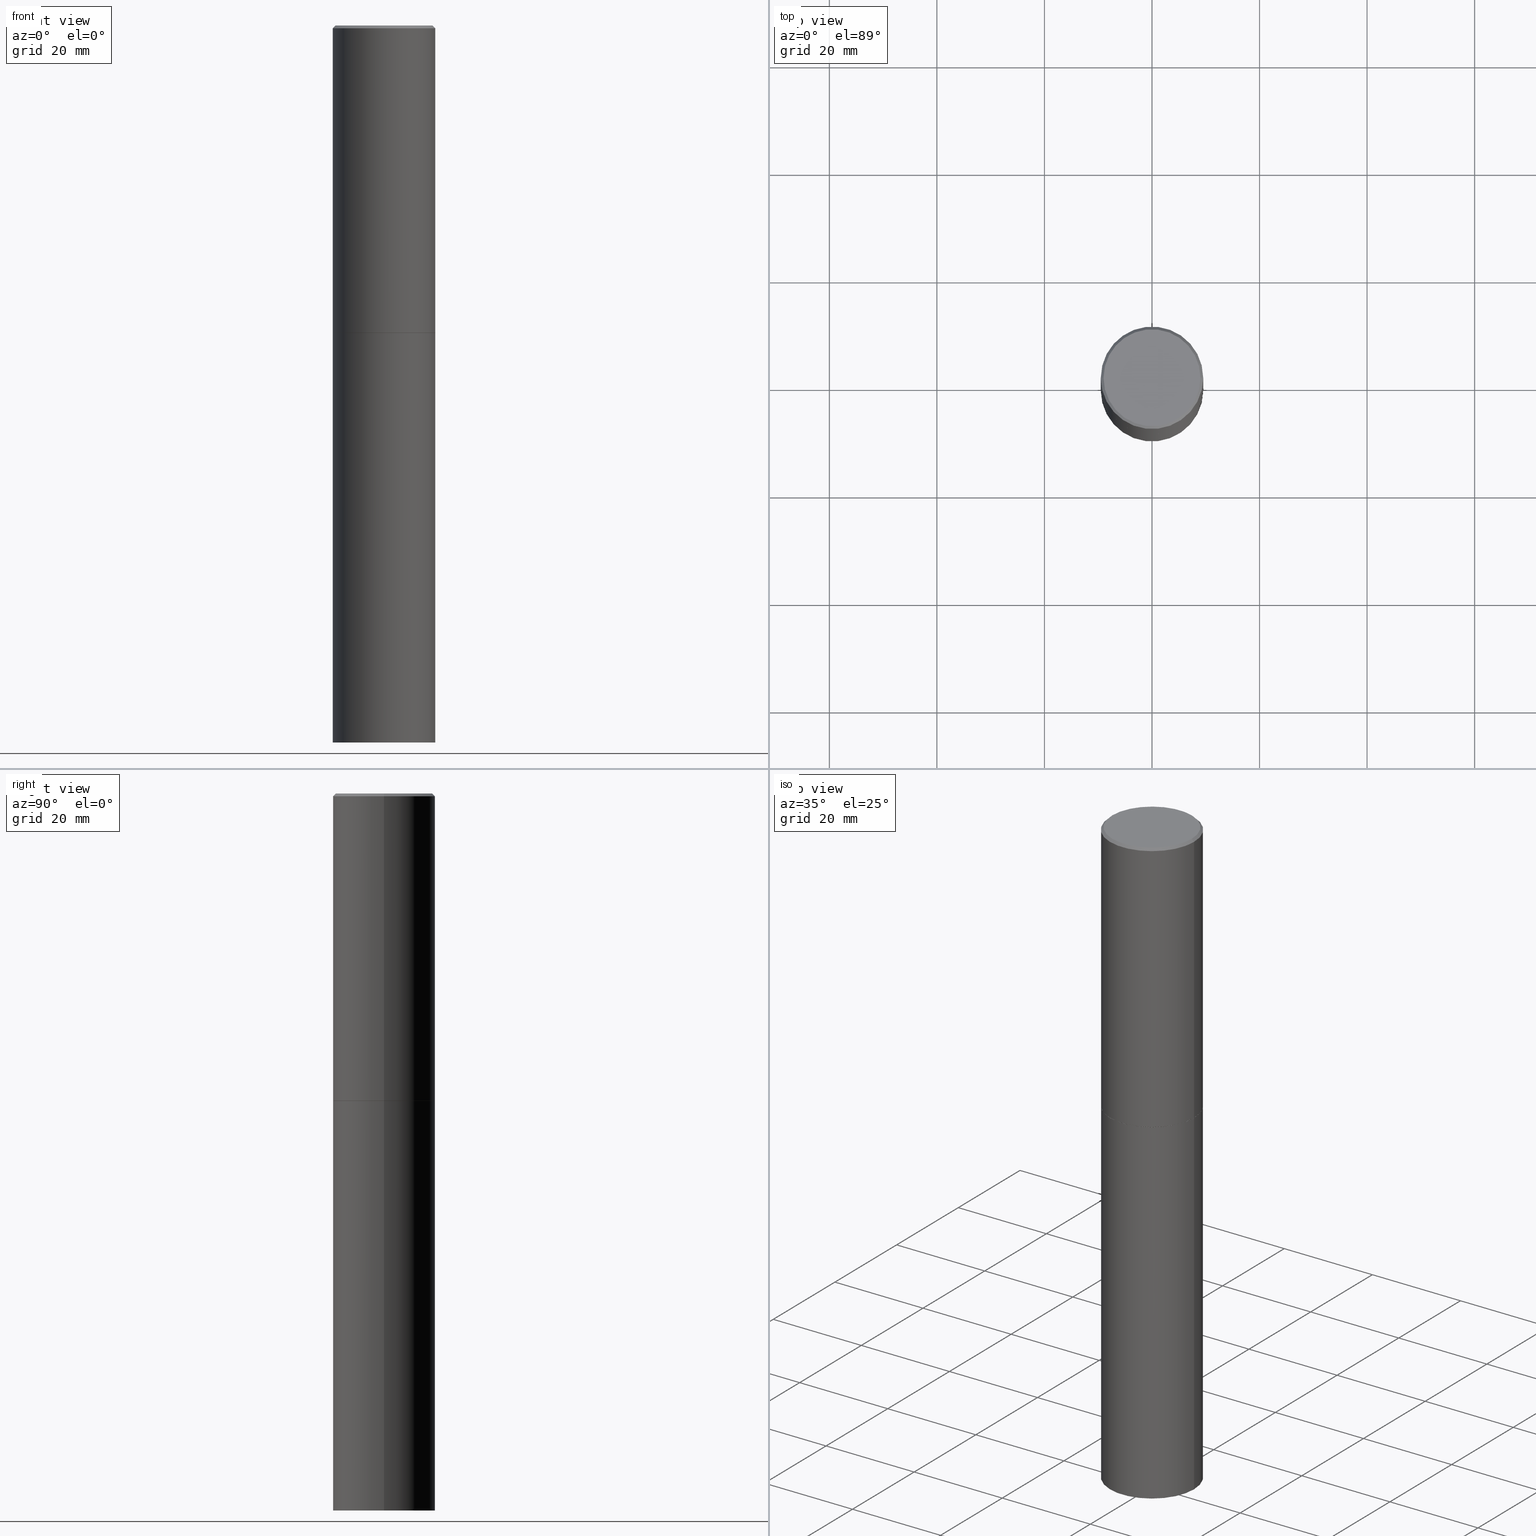
[diagram: canonical four-view strip — front | top / right | iso, engineering-drawing reading convention]
A machine part, canonical four-view strip (front | top / right | iso — engineering-drawing reading convention). The complete STEP part file that produces these views, byte-faithful:
ISO-10303-21;
HEADER;
FILE_DESCRIPTION (( 'STEP AP203' ),
    '1' );
FILE_NAME ('77276.STEP',
    '2024-02-29T17:53:42',
    ( '' ),
    ( '' ),
    'SwSTEP 2.0',
    'SolidWorks 2023',
    '' );
FILE_SCHEMA (( 'CONFIG_CONTROL_DESIGN' ));
ENDSEC;

DATA;
#1 = APPROVAL ( #339, 'UNSPECIFIED' ) ;
#2 = PERSON_AND_ORGANIZATION ( #355, #278 ) ;
#3 = APPROVAL_DATE_TIME ( #327, #21 ) ;
#4 =( GEOMETRIC_REPRESENTATION_CONTEXT ( 3 ) GLOBAL_UNCERTAINTY_ASSIGNED_CONTEXT ( ( #321 ) ) GLOBAL_UNIT_ASSIGNED_CONTEXT ( ( #110, #63, #108 ) ) REPRESENTATION_CONTEXT ( 'NONE', 'WORKASPACE' ) );
#5 = DIRECTION ( 'NONE',  ( -1.000000000000000000, 6.982962677686265922E-15, -4.876176775795935793E-29 ) ) ;
#6 = DIRECTION ( 'NONE',  ( -2.445468806185136877E-29, 3.491481338843145188E-15, 1.000000000000000000 ) ) ;
#7 = APPROVAL_ROLE ( '' ) ;
#8 = CARTESIAN_POINT ( 'NONE',  ( 0.3749999999999998335, -2.642516375941186451E-15, -0.02000000000000008021 ) ) ;
#9 = AXIS2_PLACEMENT_3D ( 'NONE', #94, #226, #62 ) ;
#10 = DIRECTION ( 'NONE',  ( -2.445468806185136597E-29, 3.491481338843145583E-15, 1.000000000000000000 ) ) ;
#11 = ADVANCED_FACE ( 'NONE', ( #243 ), #359, .F. ) ;
#12 = DIRECTION ( 'NONE',  ( -0.7071067811865474617, 7.493145998870352582E-15, 0.7071067811865474617 ) ) ;
#13 = VERTEX_POINT ( 'NONE', #192 ) ;
#14 = CARTESIAN_POINT ( 'NONE',  ( 5.499859345110371740E-29, -7.852341531058233864E-15, -2.249000000000000110 ) ) ;
#15 = ORIENTED_EDGE ( 'NONE', *, *, #183, .T. ) ;
#16 = AXIS2_PLACEMENT_3D ( 'NONE', #240, #211, #20 ) ;
#17 = EDGE_CURVE ( 'NONE', #29, #13, #43, .T. ) ;
#18 = CARTESIAN_POINT ( 'NONE',  ( 4.890937612370293302E-31, -6.982962677686318726E-17, -0.02000000000000008021 ) ) ;
#19 = ORIENTED_EDGE ( 'NONE', *, *, #215, .T. ) ;
#20 = DIRECTION ( 'NONE',  ( 1.000000000000000000, -6.982962677686266711E-15, 4.876231632511990425E-29 ) ) ;
#21 = APPROVAL ( #144, 'UNSPECIFIED' ) ;
#22 = EDGE_LOOP ( 'NONE', ( #298, #241, #19, #271 ) ) ;
#23 = CARTESIAN_POINT ( 'NONE',  ( 2.478951750578623420E-15, 0.3549999999999998157, -1.237341619044265835E-15 ) ) ;
#24 = EDGE_CURVE ( 'NONE', #109, #13, #250, .T. ) ;
#25 = ORIENTED_EDGE ( 'NONE', *, *, #252, .F. ) ;
#26 = DIRECTION ( 'NONE',  ( 1.000000000000000000, 0.000000000000000000, 0.000000000000000000 ) ) ;
#27 = AXIS2_PLACEMENT_3D ( 'NONE', #301, #316, #72 ) ;
#28 = AXIS2_PLACEMENT_3D ( 'NONE', #282, #53, #26 ) ;
#29 = VERTEX_POINT ( 'NONE', #169 ) ;
#30 = EDGE_CURVE ( 'NONE', #155, #107, #341, .T. ) ;
#31 = AXIS2_PLACEMENT_3D ( 'NONE', #356, #41, #291 ) ;
#32 = AXIS2_PLACEMENT_3D ( 'NONE', #122, #93, #229 ) ;
#33 = PERSON_AND_ORGANIZATION ( #355, #278 ) ;
#34 = DIRECTION ( 'NONE',  ( 1.000000000000000000, -6.982962677686264344E-15, 0.000000000000000000 ) ) ;
#35 = EDGE_CURVE ( 'NONE', #86, #264, #214, .T. ) ;
#36 = FACE_OUTER_BOUND ( 'NONE', #135, .T. ) ;
#37 = CARTESIAN_POINT ( 'NONE',  ( 5.499859345110371740E-29, -7.852341531058233864E-15, -2.249000000000000110 ) ) ;
#38 = SHAPE_DEFINITION_REPRESENTATION ( #140, #102 ) ;
#39 = CARTESIAN_POINT ( 'NONE',  ( 5.502304813916557343E-29, -7.855833012397078448E-15, -2.250000000000000000 ) ) ;
#40 = AXIS2_PLACEMENT_3D ( 'NONE', #152, #179, #104 ) ;
#41 = DIRECTION ( 'NONE',  ( 2.445468806185136597E-29, -3.491481338843145583E-15, -1.000000000000000000 ) ) ;
#42 = APPROVAL ( #54, 'UNSPECIFIED' ) ;
#43 = LINE ( 'NONE', #153, #158 ) ;
#44 = LINE ( 'NONE', #203, #196 ) ;
#45 = ORIENTED_EDGE ( 'NONE', *, *, #294, .F. ) ;
#46 = EDGE_CURVE ( 'NONE', #107, #155, #186, .T. ) ;
#47 = DIRECTION ( 'NONE',  ( -2.445468806185136597E-29, 3.491481338843145583E-15, 1.000000000000000000 ) ) ;
#48 = ORIENTED_EDGE ( 'NONE', *, *, #234, .T. ) ;
#49 = VECTOR ( 'NONE', #311, 39.37007874015748854 ) ;
#50 = FACE_OUTER_BOUND ( 'NONE', #319, .T. ) ;
#51 = DIRECTION ( 'NONE',  ( 1.000000000000000000, -6.982962677686265922E-15, 0.000000000000000000 ) ) ;
#52 = EDGE_LOOP ( 'NONE', ( #251, #79 ) ) ;
#53 = DIRECTION ( 'NONE',  ( 0.000000000000000000, 0.000000000000000000, 1.000000000000000000 ) ) ;
#54 = APPROVAL_STATUS ( 'not_yet_approved' ) ;
#55 = VECTOR ( 'NONE', #6, 39.37007874015748143 ) ;
#56 = SECURITY_CLASSIFICATION_LEVEL ( 'unclassified' ) ;
#57 = ADVANCED_FACE ( 'NONE', ( #36 ), #149, .T. ) ;
#58 = AXIS2_PLACEMENT_3D ( 'NONE', #37, #150, #151 ) ;
#59 = DIRECTION ( 'NONE',  ( 1.000000000000000000, -6.982962677686268288E-15, 0.000000000000000000 ) ) ;
#60 = ADVANCED_FACE ( 'NONE', ( #145 ), #261, .T. ) ;
#61 = PERSON_AND_ORGANIZATION ( #355, #278 ) ;
#62 = DIRECTION ( 'NONE',  ( 1.000000000000000000, -6.982962677686268288E-15, 0.000000000000000000 ) ) ;
#63 =( NAMED_UNIT ( * ) PLANE_ANGLE_UNIT ( ) SI_UNIT ( $, .RADIAN. ) );
#64 = AXIS2_PLACEMENT_3D ( 'NONE', #103, #129, #235 ) ;
#65 = LINE ( 'NONE', #174, #237 ) ;
#66 = CARTESIAN_POINT ( 'NONE',  ( 0.3739999999999999991, -1.046746105385174245E-14, -2.250000000000000000 ) ) ;
#67 = PRODUCT_DEFINITION ( 'UNKNOWN', '', #139, #222 ) ;
#68 = PLANE ( 'NONE',  #88 ) ;
#69 = LOCAL_TIME ( 12, 53, 42.00000000000000000, #168 ) ;
#70 = FACE_OUTER_BOUND ( 'NONE', #52, .T. ) ;
#71 = ORIENTED_EDGE ( 'NONE', *, *, #274, .F. ) ;
#72 = DIRECTION ( 'NONE',  ( 1.000000000000000000, -6.982962677686268288E-15, 0.000000000000000000 ) ) ;
#73 = ORIENTED_EDGE ( 'NONE', *, *, #294, .T. ) ;
#74 = DIRECTION ( 'NONE',  ( -2.445468806185136597E-29, 3.491481338843145583E-15, 1.000000000000000000 ) ) ;
#75 = VERTEX_POINT ( 'NONE', #117 ) ;
#76 = VECTOR ( 'NONE', #91, 39.37007874015748143 ) ;
#77 = FACE_OUTER_BOUND ( 'NONE', #266, .T. ) ;
#78 = LOCAL_TIME ( 12, 53, 42.00000000000000000, #216 ) ;
#79 = ORIENTED_EDGE ( 'NONE', *, *, #167, .T. ) ;
#80 = EDGE_CURVE ( 'NONE', #360, #303, #345, .T. ) ;
#81 =( LENGTH_UNIT ( ) NAMED_UNIT ( * ) SI_UNIT ( $, .METRE. ) );
#82 = DIRECTION ( 'NONE',  ( -1.000000000000000000, 6.982962677686265922E-15, -4.876176775795935793E-29 ) ) ;
#83 = CALENDAR_DATE ( 2024, 29, 2 ) ;
#84 = APPROVAL_DATE_TIME ( #195, #42 ) ;
#85 = AXIS2_PLACEMENT_3D ( 'NONE', #14, #184, #156 ) ;
#86 = VERTEX_POINT ( 'NONE', #336 ) ;
#87 = ADVANCED_FACE ( 'NONE', ( #121 ), #307, .T. ) ;
#88 = AXIS2_PLACEMENT_3D ( 'NONE', #132, #352, #253 ) ;
#89 = CALENDAR_DATE ( 2024, 29, 2 ) ;
#90 = CC_DESIGN_DATE_AND_TIME_ASSIGNMENT ( #334, #310, ( #143 ) ) ;
#91 = DIRECTION ( 'NONE',  ( -0.7071067811865459074, 2.468850131082239706E-15, -0.7071067811865492381 ) ) ;
#92 = CALENDAR_DATE ( 2024, 29, 2 ) ;
#93 = DIRECTION ( 'NONE',  ( -2.445468806185136597E-29, 3.491481338843145583E-15, 1.000000000000000000 ) ) ;
#94 = CARTESIAN_POINT ( 'NONE',  ( 5.502304813916557343E-29, -7.855833012397078448E-15, -2.250000000000000000 ) ) ;
#95 = AXIS2_PLACEMENT_3D ( 'NONE', #97, #280, #257 ) ;
#96 = EDGE_CURVE ( 'NONE', #264, #86, #256, .T. ) ;
#97 = CARTESIAN_POINT ( 'NONE',  ( 5.502304813916557343E-29, -7.855833012397078448E-15, -2.250000000000000000 ) ) ;
#98 = DIRECTION ( 'NONE',  ( 1.000000000000000000, -6.982962677686266711E-15, 4.876176775795935793E-29 ) ) ;
#99 = EDGE_CURVE ( 'NONE', #220, #360, #201, .T. ) ;
#100 = CARTESIAN_POINT ( 'NONE',  ( 0.3739999999999999991, -1.046746105385174245E-14, -2.250000000000000000 ) ) ;
#101 = AXIS2_PLACEMENT_3D ( 'NONE', #228, #10, #34 ) ;
#102 = ADVANCED_BREP_SHAPE_REPRESENTATION ( '77276', ( #119, #133, #28 ), #4 ) ;
#103 = CARTESIAN_POINT ( 'NONE',  ( 4.890937612370293302E-31, -6.982962677686318726E-17, -0.02000000000000008021 ) ) ;
#104 = DIRECTION ( 'NONE',  ( -1.000000000000000000, 6.982962677686265922E-15, 0.000000000000000000 ) ) ;
#105 = ORIENTED_EDGE ( 'NONE', *, *, #80, .T. ) ;
#106 = CYLINDRICAL_SURFACE ( 'NONE', #225, 0.3750000000000000555 ) ;
#107 = VERTEX_POINT ( 'NONE', #202 ) ;
#108 =( NAMED_UNIT ( * ) SI_UNIT ( $, .STERADIAN. ) SOLID_ANGLE_UNIT ( ) );
#109 = VERTEX_POINT ( 'NONE', #312 ) ;
#110 =( CONVERSION_BASED_UNIT ( 'INCH', #190 ) LENGTH_UNIT ( ) NAMED_UNIT ( #177 ) );
#111 = ORIENTED_EDGE ( 'NONE', *, *, #96, .T. ) ;
#112 = EDGE_CURVE ( 'NONE', #264, #155, #65, .T. ) ;
#113 = AXIS2_PLACEMENT_3D ( 'NONE', #217, #328, #82 ) ;
#114 = APPROVAL_PERSON_ORGANIZATION ( #61, #1, #7 ) ;
#115 = CC_DESIGN_PERSON_AND_ORGANIZATION_ASSIGNMENT ( #306, #255, ( #67 ) ) ;
#116 = COORDINATED_UNIVERSAL_TIME_OFFSET ( 5, 0, .BEHIND. ) ;
#117 = CARTESIAN_POINT ( 'NONE',  ( -0.3739999999999999991, -5.193104726306080569E-15, -2.250000000000000000 ) ) ;
#118 = AXIS2_PLACEMENT_3D ( 'NONE', #23, #265, #181 ) ;
#119 = MANIFOLD_SOLID_BREP ( 'Body-Move/Copy2[1]', #213 ) ;
#120 = DIRECTION ( 'NONE',  ( 1.000000000000000000, -6.982962677686261189E-15, 0.000000000000000000 ) ) ;
#121 = FACE_OUTER_BOUND ( 'NONE', #210, .T. ) ;
#122 = CARTESIAN_POINT ( 'NONE',  ( 0.000000000000000000, 0.000000000000000000, 0.000000000000000000 ) ) ;
#123 = EDGE_CURVE ( 'NONE', #360, #29, #147, .T. ) ;
#124 = VECTOR ( 'NONE', #288, 39.37007874015748143 ) ;
#125 = LOCAL_TIME ( 12, 53, 42.00000000000000000, #175 ) ;
#126 = CARTESIAN_POINT ( 'NONE',  ( -0.3750000000000000555, -1.042851976156142014E-14, -2.250000000000000000 ) ) ;
#127 = DIRECTION ( 'NONE',  ( -2.445468806185136597E-29, 3.491481338843145583E-15, 1.000000000000000000 ) ) ;
#128 = ORIENTED_EDGE ( 'NONE', *, *, #46, .F. ) ;
#129 = DIRECTION ( 'NONE',  ( -2.445468806185136597E-29, 3.491481338843145583E-15, 1.000000000000000000 ) ) ;
#130 = ORIENTED_EDGE ( 'NONE', *, *, #123, .T. ) ;
#131 = CLOSED_SHELL ( 'NONE', ( #87, #164, #231, #191, #338, #245, #354, #259 ) ) ;
#132 = CARTESIAN_POINT ( 'NONE',  ( 5.502304813916557343E-29, -7.855833012397078448E-15, -2.250000000000000000 ) ) ;
#133 = MANIFOLD_SOLID_BREP ( 'Body-Move/Copy2[2]', #131 ) ;
#134 = CARTESIAN_POINT ( 'NONE',  ( -0.3750000000000000555, -1.042851976156142014E-14, -5.250000000000000000 ) ) ;
#135 = EDGE_LOOP ( 'NONE', ( #236, #205, #128, #185 ) ) ;
#136 = LINE ( 'NONE', #209, #349 ) ;
#137 = EDGE_LOOP ( 'NONE', ( #138, #71, #212, #73 ) ) ;
#138 = ORIENTED_EDGE ( 'NONE', *, *, #141, .F. ) ;
#139 = PRODUCT_DEFINITION_FORMATION_WITH_SPECIFIED_SOURCE ( 'ANY', '', #302, .NOT_KNOWN. ) ;
#140 = PRODUCT_DEFINITION_SHAPE ( 'NONE', 'NONE',  #67 ) ;
#141 = EDGE_CURVE ( 'NONE', #180, #303, #258, .T. ) ;
#142 = PERSON_AND_ORGANIZATION ( #355, #278 ) ;
#143 = SECURITY_CLASSIFICATION ( '', '', #56 ) ;
#144 = APPROVAL_STATUS ( 'not_yet_approved' ) ;
#145 = FACE_OUTER_BOUND ( 'NONE', #348, .T. ) ;
#146 = APPLICATION_PROTOCOL_DEFINITION ( 'international standard', 'config_control_design', 1994, #292 ) ;
#147 = CIRCLE ( 'NONE', #58, 0.3750000000000001110 ) ;
#148 = COORDINATED_UNIVERSAL_TIME_OFFSET ( 5, 0, .BEHIND. ) ;
#149 = CYLINDRICAL_SURFACE ( 'NONE', #32, 0.3750000000000000555 ) ;
#150 = DIRECTION ( 'NONE',  ( -2.445468806185136597E-29, 3.491481338843145583E-15, 1.000000000000000000 ) ) ;
#151 = DIRECTION ( 'NONE',  ( 1.000000000000000000, -6.982962677686265922E-15, 0.000000000000000000 ) ) ;
#152 = CARTESIAN_POINT ( 'NONE',  ( 4.890937612370293302E-31, -6.982962677686318726E-17, -0.02000000000000008021 ) ) ;
#153 = CARTESIAN_POINT ( 'NONE',  ( -0.3749999999999999445, 2.664535259100375303E-15, -1.844600658845589318E-29 ) ) ;
#154 = FACE_OUTER_BOUND ( 'NONE', #326, .T. ) ;
#155 = VERTEX_POINT ( 'NONE', #126 ) ;
#156 = DIRECTION ( 'NONE',  ( 1.000000000000000000, -6.982962677686265922E-15, 0.000000000000000000 ) ) ;
#157 = ORIENTED_EDGE ( 'NONE', *, *, #286, .F. ) ;
#158 = VECTOR ( 'NONE', #277, 39.37007874015748143 ) ;
#159 = LOCAL_TIME ( 12, 53, 42.00000000000000000, #148 ) ;
#160 = EDGE_CURVE ( 'NONE', #220, #75, #260, .T. ) ;
#161 = CARTESIAN_POINT ( 'NONE',  ( 0.000000000000000000, 0.000000000000000000, 0.000000000000000000 ) ) ;
#162 = DIRECTION ( 'NONE',  ( -2.445468806185136877E-29, 3.491481338843145188E-15, 1.000000000000000000 ) ) ;
#163 = ORIENTED_EDGE ( 'NONE', *, *, #96, .F. ) ;
#164 = ADVANCED_FACE ( 'NONE', ( #176 ), #347, .T. ) ;
#165 = CIRCLE ( 'NONE', #16, 0.3549999999999998157 ) ;
#166 = CARTESIAN_POINT ( 'NONE',  ( 0.3750000000000001110, -1.047095253519058546E-14, -2.249000000000000110 ) ) ;
#167 = EDGE_CURVE ( 'NONE', #180, #109, #289, .T. ) ;
#168 = COORDINATED_UNIVERSAL_TIME_OFFSET ( 5, 0, .BEHIND. ) ;
#169 = CARTESIAN_POINT ( 'NONE',  ( -0.3750000000000001110, -1.296550319817170517E-15, -2.249000000000000110 ) ) ;
#170 = CC_DESIGN_PERSON_AND_ORGANIZATION_ASSIGNMENT ( #33, #200, ( #139 ) ) ;
#171 = DIRECTION ( 'NONE',  ( -2.445468806185136597E-29, 3.491481338843145583E-15, 1.000000000000000000 ) ) ;
#172 = CONICAL_SURFACE ( 'NONE', #27, 0.3739999999999999991, 0.7853981633974482790 ) ;
#173 = CC_DESIGN_APPROVAL ( #1, ( #143 ) ) ;
#174 = CARTESIAN_POINT ( 'NONE',  ( -0.3750000000000000555, 2.664535259100376091E-15, -1.844600658845589598E-29 ) ) ;
#175 = COORDINATED_UNIVERSAL_TIME_OFFSET ( 5, 0, .BEHIND. ) ;
#176 = FACE_OUTER_BOUND ( 'NONE', #353, .T. ) ;
#177 = DIMENSIONAL_EXPONENTS ( 1.000000000000000000, 0.000000000000000000, 0.000000000000000000, 0.000000000000000000, 0.000000000000000000, 0.000000000000000000, 0.000000000000000000 ) ;
#178 = AXIS2_PLACEMENT_3D ( 'NONE', #272, #127, #232 ) ;
#179 = DIRECTION ( 'NONE',  ( 2.445468806185136597E-29, -3.491481338843145583E-15, -1.000000000000000000 ) ) ;
#180 = VERTEX_POINT ( 'NONE', #318 ) ;
#181 = DIRECTION ( 'NONE',  ( -1.000000000000000000, 6.982962677686265922E-15, -4.876176775795935793E-29 ) ) ;
#182 = ORIENTED_EDGE ( 'NONE', *, *, #99, .F. ) ;
#183 = EDGE_CURVE ( 'NONE', #86, #107, #136, .T. ) ;
#184 = DIRECTION ( 'NONE',  ( -2.445468806185136597E-29, 3.491481338843145583E-15, 1.000000000000000000 ) ) ;
#185 = ORIENTED_EDGE ( 'NONE', *, *, #183, .F. ) ;
#186 = CIRCLE ( 'NONE', #101, 0.3750000000000000555 ) ;
#187 = CC_DESIGN_APPROVAL ( #21, ( #139 ) ) ;
#188 = CYLINDRICAL_SURFACE ( 'NONE', #262, 0.3749999999999999445 ) ;
#189 = ORIENTED_EDGE ( 'NONE', *, *, #46, .T. ) ;
#190 = LENGTH_MEASURE_WITH_UNIT ( LENGTH_MEASURE( 0.02539999999999999897 ), #81 );
#191 = ADVANCED_FACE ( 'NONE', ( #290 ), #230, .T. ) ;
#192 = CARTESIAN_POINT ( 'NONE',  ( -0.3749999999999998335, 2.548781377355485141E-15, -0.02000000000000008021 ) ) ;
#193 = CC_DESIGN_PERSON_AND_ORGANIZATION_ASSIGNMENT ( #2, #198, ( #143 ) ) ;
#194 = CIRCLE ( 'NONE', #85, 0.3750000000000001110 ) ;
#195 = DATE_AND_TIME ( #83, #159 ) ;
#196 = VECTOR ( 'NONE', #12, 39.37007874015748854 ) ;
#197 = CARTESIAN_POINT ( 'NONE',  ( 1.283871123247196713E-28, -1.833027702892651322E-14, -5.250000000000000000 ) ) ;
#198 = PERSON_AND_ORGANIZATION_ROLE ( 'classification_officer' ) ;
#199 = DIRECTION ( 'NONE',  ( -2.445468806185136597E-29, 3.491481338843145583E-15, 1.000000000000000000 ) ) ;
#200 = PERSON_AND_ORGANIZATION_ROLE ( 'creator' ) ;
#201 = LINE ( 'NONE', #66, #49 ) ;
#202 = CARTESIAN_POINT ( 'NONE',  ( 0.3750000000000000555, -1.047444401652942689E-14, -2.250000000000000000 ) ) ;
#203 = CARTESIAN_POINT ( 'NONE',  ( -0.3739999999999999991, -5.198403180654302971E-15, -2.250000000000000000 ) ) ;
#204 = DIRECTION ( 'NONE',  ( 1.000000000000000000, -6.982962677686266711E-15, 4.876231632511990425E-29 ) ) ;
#205 = ORIENTED_EDGE ( 'NONE', *, *, #112, .T. ) ;
#206 = AXIS2_PLACEMENT_3D ( 'NONE', #284, #199, #120 ) ;
#207 = LOCAL_TIME ( 12, 53, 42.00000000000000000, #116 ) ;
#208 = DIRECTION ( 'NONE',  ( 1.000000000000000000, -6.982962677686265922E-15, 4.876176775795935793E-29 ) ) ;
#209 = CARTESIAN_POINT ( 'NONE',  ( 0.3750000000000000555, -2.618611004132350016E-15, 1.828566290923476203E-29 ) ) ;
#210 = EDGE_LOOP ( 'NONE', ( #317, #48, #273, #182 ) ) ;
#211 = DIRECTION ( 'NONE',  ( -2.445468806185136597E-29, 3.491481338843145583E-15, 1.000000000000000000 ) ) ;
#212 = ORIENTED_EDGE ( 'NONE', *, *, #24, .T. ) ;
#213 = CLOSED_SHELL ( 'NONE', ( #57, #60, #11, #323 ) ) ;
#214 = CIRCLE ( 'NONE', #206, 0.3750000000000000555 ) ;
#215 = EDGE_CURVE ( 'NONE', #303, #13, #308, .T. ) ;
#216 = COORDINATED_UNIVERSAL_TIME_OFFSET ( 5, 0, .BEHIND. ) ;
#217 = CARTESIAN_POINT ( 'NONE',  ( 2.618611004132404842E-15, 0.3749999999999921729, -2.250000000000001332 ) ) ;
#218 = CC_DESIGN_DATE_AND_TIME_ASSIGNMENT ( #357, #279, ( #67 ) ) ;
#219 = PERSON_AND_ORGANIZATION ( #355, #278 ) ;
#220 = VERTEX_POINT ( 'NONE', #100 ) ;
#221 = AXIS2_PLACEMENT_3D ( 'NONE', #197, #171, #337 ) ;
#222 = DESIGN_CONTEXT ( 'detailed design', #344, 'design' ) ;
#223 = CALENDAR_DATE ( 2024, 29, 2 ) ;
#224 = CIRCLE ( 'NONE', #178, 0.3739999999999999991 ) ;
#225 = AXIS2_PLACEMENT_3D ( 'NONE', #242, #324, #208 ) ;
#226 = DIRECTION ( 'NONE',  ( -2.445468806185136597E-29, 3.491481338843145583E-15, 1.000000000000000000 ) ) ;
#227 = PRODUCT_RELATED_PRODUCT_CATEGORY ( 'detail', '', ( #302 ) ) ;
#228 = CARTESIAN_POINT ( 'NONE',  ( 5.502304813916557343E-29, -7.855833012397078448E-15, -2.250000000000000000 ) ) ;
#229 = DIRECTION ( 'NONE',  ( 1.000000000000000000, -6.982962677686265922E-15, 4.876176775795935793E-29 ) ) ;
#230 = CONICAL_SURFACE ( 'NONE', #31, 0.3749999999999998335, 0.7853981633974459475 ) ;
#231 = ADVANCED_FACE ( 'NONE', ( #320 ), #331, .T. ) ;
#232 = DIRECTION ( 'NONE',  ( 1.000000000000000000, -6.982962677686268288E-15, 0.000000000000000000 ) ) ;
#233 = ORIENTED_EDGE ( 'NONE', *, *, #30, .T. ) ;
#234 = EDGE_CURVE ( 'NONE', #75, #29, #44, .T. ) ;
#235 = DIRECTION ( 'NONE',  ( 1.000000000000000000, -6.982962677686265922E-15, 0.000000000000000000 ) ) ;
#236 = ORIENTED_EDGE ( 'NONE', *, *, #35, .T. ) ;
#237 = VECTOR ( 'NONE', #287, 39.37007874015748143 ) ;
#238 = DIRECTION ( 'NONE',  ( 1.000000000000000000, -6.982962677686266711E-15, 4.876176775795935793E-29 ) ) ;
#239 = ORIENTED_EDGE ( 'NONE', *, *, #112, .F. ) ;
#240 = CARTESIAN_POINT ( 'NONE',  ( -1.043851414335219820E-46, 1.490343170380447200E-32, 4.268512490100411279E-18 ) ) ;
#241 = ORIENTED_EDGE ( 'NONE', *, *, #141, .T. ) ;
#242 = CARTESIAN_POINT ( 'NONE',  ( 0.000000000000000000, 0.000000000000000000, 0.000000000000000000 ) ) ;
#243 = FACE_OUTER_BOUND ( 'NONE', #322, .T. ) ;
#244 = ORIENTED_EDGE ( 'NONE', *, *, #234, .F. ) ;
#245 = ADVANCED_FACE ( 'NONE', ( #154 ), #172, .T. ) ;
#246 = PERSON_AND_ORGANIZATION_ROLE ( 'design_owner' ) ;
#247 = ORIENTED_EDGE ( 'NONE', *, *, #35, .F. ) ;
#248 = PERSON_AND_ORGANIZATION ( #355, #278 ) ;
#249 = ORIENTED_EDGE ( 'NONE', *, *, #17, .T. ) ;
#250 = LINE ( 'NONE', #340, #76 ) ;
#251 = ORIENTED_EDGE ( 'NONE', *, *, #274, .T. ) ;
#252 = EDGE_CURVE ( 'NONE', #75, #220, #224, .T. ) ;
#253 = DIRECTION ( 'NONE',  ( 1.000000000000000000, -6.982962677686265922E-15, 4.876176775795935793E-29 ) ) ;
#254 = DIRECTION ( 'NONE',  ( 2.438088387897960049E-29, -3.491481338843145188E-15, -1.000000000000000000 ) ) ;
#255 = PERSON_AND_ORGANIZATION_ROLE ( 'creator' ) ;
#256 = CIRCLE ( 'NONE', #221, 0.3750000000000000555 ) ;
#257 = DIRECTION ( 'NONE',  ( 1.000000000000000000, -6.982962677686264344E-15, 0.000000000000000000 ) ) ;
#258 = LINE ( 'NONE', #8, #124 ) ;
#259 = ADVANCED_FACE ( 'NONE', ( #70 ), #297, .F. ) ;
#260 = CIRCLE ( 'NONE', #366, 0.3739999999999999991 ) ;
#261 = PLANE ( 'NONE',  #299 ) ;
#262 = AXIS2_PLACEMENT_3D ( 'NONE', #295, #47, #98 ) ;
#263 = DIRECTION ( 'NONE',  ( -2.445468806185136597E-29, 3.491481338843145583E-15, 1.000000000000000000 ) ) ;
#264 = VERTEX_POINT ( 'NONE', #134 ) ;
#265 = DIRECTION ( 'NONE',  ( 2.438088387897960049E-29, -3.491481338843145188E-15, -1.000000000000000000 ) ) ;
#266 = EDGE_LOOP ( 'NONE', ( #293, #362, #105, #45 ) ) ;
#267 = CARTESIAN_POINT ( 'NONE',  ( -1.043851414335219820E-46, 1.490343170380447200E-32, 4.268512490100411279E-18 ) ) ;
#268 = EDGE_LOOP ( 'NONE', ( #275, #25 ) ) ;
#269 = CC_DESIGN_APPROVAL ( #42, ( #67 ) ) ;
#270 = DIRECTION ( 'NONE',  ( -2.445468806185136597E-29, 3.491481338843145583E-15, 1.000000000000000000 ) ) ;
#271 = ORIENTED_EDGE ( 'NONE', *, *, #24, .F. ) ;
#272 = CARTESIAN_POINT ( 'NONE',  ( 5.502304813916557343E-29, -7.855833012397078448E-15, -2.250000000000000000 ) ) ;
#273 = ORIENTED_EDGE ( 'NONE', *, *, #123, .F. ) ;
#274 = EDGE_CURVE ( 'NONE', #109, #180, #165, .T. ) ;
#275 = ORIENTED_EDGE ( 'NONE', *, *, #160, .F. ) ;
#276 = AXIS2_PLACEMENT_3D ( 'NONE', #161, #74, #238 ) ;
#277 = DIRECTION ( 'NONE',  ( -2.445468806185136877E-29, 3.491481338843145188E-15, 1.000000000000000000 ) ) ;
#278 = ORGANIZATION ( 'UNSPECIFIED', 'UNSPECIFIED', '' ) ;
#279 = DATE_TIME_ROLE ( 'creation_date' ) ;
#280 = DIRECTION ( 'NONE',  ( -2.445468806185136597E-29, 3.491481338843145583E-15, 1.000000000000000000 ) ) ;
#281 = APPROVAL_ROLE ( '' ) ;
#282 = CARTESIAN_POINT ( 'NONE',  ( 0.000000000000000000, 0.000000000000000000, 0.000000000000000000 ) ) ;
#283 = CIRCLE ( 'NONE', #64, 0.3749999999999998335 ) ;
#284 = CARTESIAN_POINT ( 'NONE',  ( 1.283871123247196713E-28, -1.833027702892651322E-14, -5.250000000000000000 ) ) ;
#285 = CALENDAR_DATE ( 2024, 29, 2 ) ;
#286 = EDGE_CURVE ( 'NONE', #29, #360, #194, .T. ) ;
#287 = DIRECTION ( 'NONE',  ( -2.445468806185136877E-29, 3.491481338843145188E-15, 1.000000000000000000 ) ) ;
#288 = DIRECTION ( 'NONE',  ( 0.7071067811865459074, -7.319954787623251312E-15, -0.7071067811865492381 ) ) ;
#289 = CIRCLE ( 'NONE', #325, 0.3549999999999998157 ) ;
#290 = FACE_OUTER_BOUND ( 'NONE', #137, .T. ) ;
#291 = DIRECTION ( 'NONE',  ( -1.000000000000000000, 6.982962677686265922E-15, 0.000000000000000000 ) ) ;
#292 = APPLICATION_CONTEXT ( 'configuration controlled 3d designs of mechanical parts and assemblies' ) ;
#293 = ORIENTED_EDGE ( 'NONE', *, *, #17, .F. ) ;
#294 = EDGE_CURVE ( 'NONE', #13, #303, #283, .T. ) ;
#295 = CARTESIAN_POINT ( 'NONE',  ( 0.000000000000000000, 0.000000000000000000, 0.000000000000000000 ) ) ;
#296 = ORIENTED_EDGE ( 'NONE', *, *, #99, .T. ) ;
#297 = PLANE ( 'NONE',  #118 ) ;
#298 = ORIENTED_EDGE ( 'NONE', *, *, #167, .F. ) ;
#299 = AXIS2_PLACEMENT_3D ( 'NONE', #314, #254, #5 ) ;
#300 = APPROVAL_PERSON_ORGANIZATION ( #142, #21, #281 ) ;
#301 = CARTESIAN_POINT ( 'NONE',  ( 5.502304813916557343E-29, -7.855833012397078448E-15, -2.250000000000000000 ) ) ;
#302 = PRODUCT ( '77276', '77276', '', ( #304 ) ) ;
#303 = VERTEX_POINT ( 'NONE', #350 ) ;
#304 = MECHANICAL_CONTEXT ( 'NONE', #292, 'mechanical' ) ;
#305 = ORIENTED_EDGE ( 'NONE', *, *, #252, .T. ) ;
#306 = PERSON_AND_ORGANIZATION ( #355, #278 ) ;
#307 = CONICAL_SURFACE ( 'NONE', #9, 0.3739999999999999991, 0.7853981633974482790 ) ;
#308 = CIRCLE ( 'NONE', #358, 0.3749999999999998335 ) ;
#309 = DIRECTION ( 'NONE',  ( -2.445468806185136597E-29, 3.491481338843145583E-15, 1.000000000000000000 ) ) ;
#310 = DATE_TIME_ROLE ( 'classification_date' ) ;
#311 = DIRECTION ( 'NONE',  ( 0.7071067811865474617, -2.468850131082256666E-15, 0.7071067811865474617 ) ) ;
#312 = CARTESIAN_POINT ( 'NONE',  ( -0.3549999999999998157, 2.513866563967054675E-15, 4.268512490082953109E-18 ) ) ;
#313 = DATE_AND_TIME ( #285, #125 ) ;
#314 = CARTESIAN_POINT ( 'NONE',  ( 2.618611004132478601E-15, 0.3749999999999817368, -5.250000000000000888 ) ) ;
#315 = FACE_OUTER_BOUND ( 'NONE', #268, .T. ) ;
#316 = DIRECTION ( 'NONE',  ( -2.445468806185136597E-29, 3.491481338843145583E-15, 1.000000000000000000 ) ) ;
#317 = ORIENTED_EDGE ( 'NONE', *, *, #160, .T. ) ;
#318 = CARTESIAN_POINT ( 'NONE',  ( 0.3549999999999998157, -2.538996582575039470E-15, 4.268512490117958041E-18 ) ) ;
#319 = EDGE_LOOP ( 'NONE', ( #239, #111, #15, #365 ) ) ;
#320 = FACE_OUTER_BOUND ( 'NONE', #22, .T. ) ;
#321 = UNCERTAINTY_MEASURE_WITH_UNIT (LENGTH_MEASURE( 1.000000000000000082E-05 ), #110, 'distance_accuracy_value', 'NONE');
#322 = EDGE_LOOP ( 'NONE', ( #189, #233 ) ) ;
#323 = ADVANCED_FACE ( 'NONE', ( #50 ), #106, .T. ) ;
#324 = DIRECTION ( 'NONE',  ( -2.445468806185136597E-29, 3.491481338843145583E-15, 1.000000000000000000 ) ) ;
#325 = AXIS2_PLACEMENT_3D ( 'NONE', #267, #270, #204 ) ;
#326 = EDGE_LOOP ( 'NONE', ( #244, #305, #296, #157 ) ) ;
#327 = DATE_AND_TIME ( #92, #78 ) ;
#328 = DIRECTION ( 'NONE',  ( 2.438088387897960049E-29, -3.491481338843145188E-15, -1.000000000000000000 ) ) ;
#329 = APPROVAL_ROLE ( '' ) ;
#330 = PERSON_AND_ORGANIZATION ( #355, #278 ) ;
#331 = CONICAL_SURFACE ( 'NONE', #40, 0.3749999999999998335, 0.7853981633974459475 ) ;
#332 = ORIENTED_EDGE ( 'NONE', *, *, #80, .F. ) ;
#333 = APPROVAL_PERSON_ORGANIZATION ( #219, #42, #329 ) ;
#334 = DATE_AND_TIME ( #89, #207 ) ;
#335 = CC_DESIGN_PERSON_AND_ORGANIZATION_ASSIGNMENT ( #248, #364, ( #139 ) ) ;
#336 = CARTESIAN_POINT ( 'NONE',  ( 0.3750000000000000555, -2.094888803305886324E-14, -5.250000000000000000 ) ) ;
#337 = DIRECTION ( 'NONE',  ( 1.000000000000000000, -6.982962677686261189E-15, 0.000000000000000000 ) ) ;
#338 = ADVANCED_FACE ( 'NONE', ( #77 ), #188, .T. ) ;
#339 = APPROVAL_STATUS ( 'not_yet_approved' ) ;
#340 = CARTESIAN_POINT ( 'NONE',  ( -0.3749999999999998335, 2.548781377355485141E-15, -0.02000000000000008021 ) ) ;
#341 = CIRCLE ( 'NONE', #95, 0.3750000000000000555 ) ;
#342 = CC_DESIGN_SECURITY_CLASSIFICATION ( #143, ( #139 ) ) ;
#343 = CARTESIAN_POINT ( 'NONE',  ( 0.3749999999999999445, -2.618611004132349622E-15, 1.828566290923475642E-29 ) ) ;
#344 = APPLICATION_CONTEXT ( 'configuration controlled 3d designs of mechanical parts and assemblies' ) ;
#345 = LINE ( 'NONE', #343, #55 ) ;
#346 = APPROVAL_DATE_TIME ( #313, #1 ) ;
#347 = CYLINDRICAL_SURFACE ( 'NONE', #276, 0.3749999999999999445 ) ;
#348 = EDGE_LOOP ( 'NONE', ( #247, #163 ) ) ;
#349 = VECTOR ( 'NONE', #162, 39.37007874015748143 ) ;
#350 = CARTESIAN_POINT ( 'NONE',  ( 0.3749999999999998335, -2.642516375941186451E-15, -0.02000000000000008021 ) ) ;
#351 = ORIENTED_EDGE ( 'NONE', *, *, #215, .F. ) ;
#352 = DIRECTION ( 'NONE',  ( -2.438088387897960049E-29, 3.491481338843145188E-15, 1.000000000000000000 ) ) ;
#353 = EDGE_LOOP ( 'NONE', ( #130, #249, #351, #332 ) ) ;
#354 = ADVANCED_FACE ( 'NONE', ( #315 ), #68, .F. ) ;
#355 = PERSON ( 'UNSPECIFIED', 'UNSPECIFIED', 'UNSPECIFIED', ('UNSPECIFIED'), ('UNSPECIFIED'), ('UNSPECIFIED') ) ;
#356 = CARTESIAN_POINT ( 'NONE',  ( 4.890937612370293302E-31, -6.982962677686318726E-17, -0.02000000000000008021 ) ) ;
#357 = DATE_AND_TIME ( #223, #69 ) ;
#358 = AXIS2_PLACEMENT_3D ( 'NONE', #18, #263, #51 ) ;
#359 = PLANE ( 'NONE',  #113 ) ;
#360 = VERTEX_POINT ( 'NONE', #166 ) ;
#361 = APPLICATION_PROTOCOL_DEFINITION ( 'international standard', 'config_control_design', 1994, #344 ) ;
#362 = ORIENTED_EDGE ( 'NONE', *, *, #286, .T. ) ;
#363 = CC_DESIGN_PERSON_AND_ORGANIZATION_ASSIGNMENT ( #330, #246, ( #302 ) ) ;
#364 = PERSON_AND_ORGANIZATION_ROLE ( 'design_supplier' ) ;
#365 = ORIENTED_EDGE ( 'NONE', *, *, #30, .F. ) ;
#366 = AXIS2_PLACEMENT_3D ( 'NONE', #39, #309, #59 ) ;
ENDSEC;
END-ISO-10303-21;
